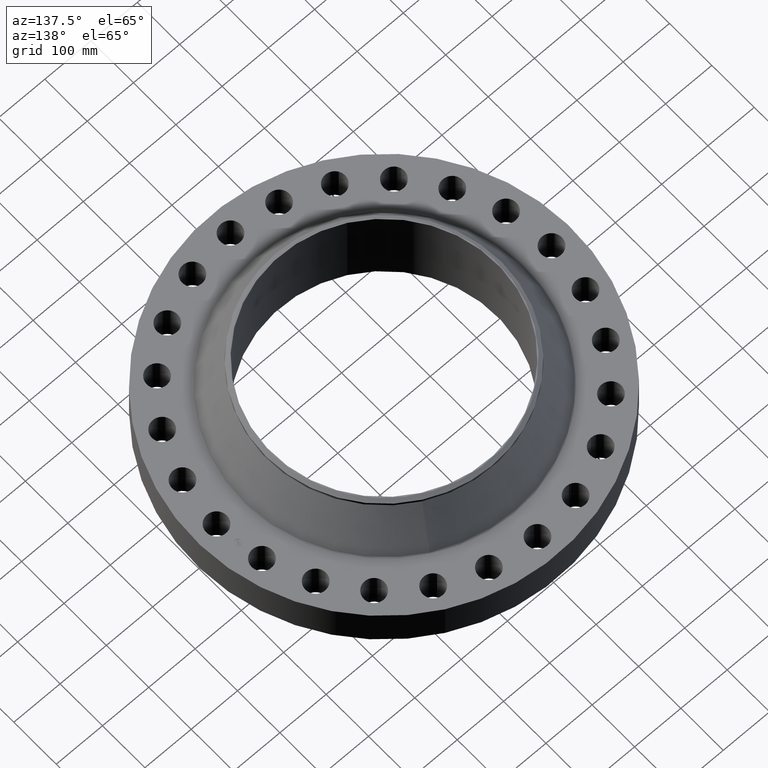
[diagram: clean part render]
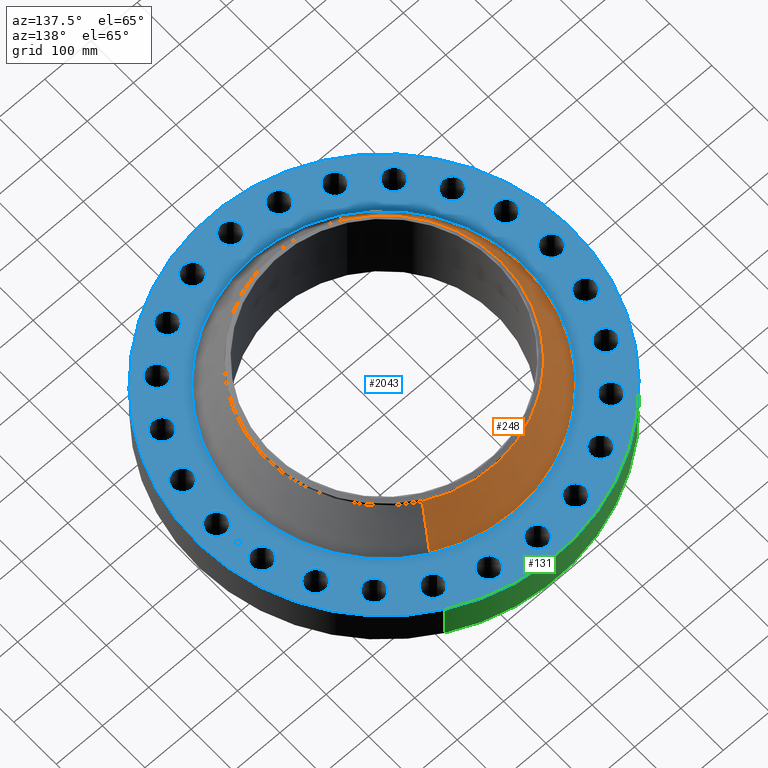
[diagram: same view with three faces highlighted in distinct colors, each labeled with its STEP entity id]
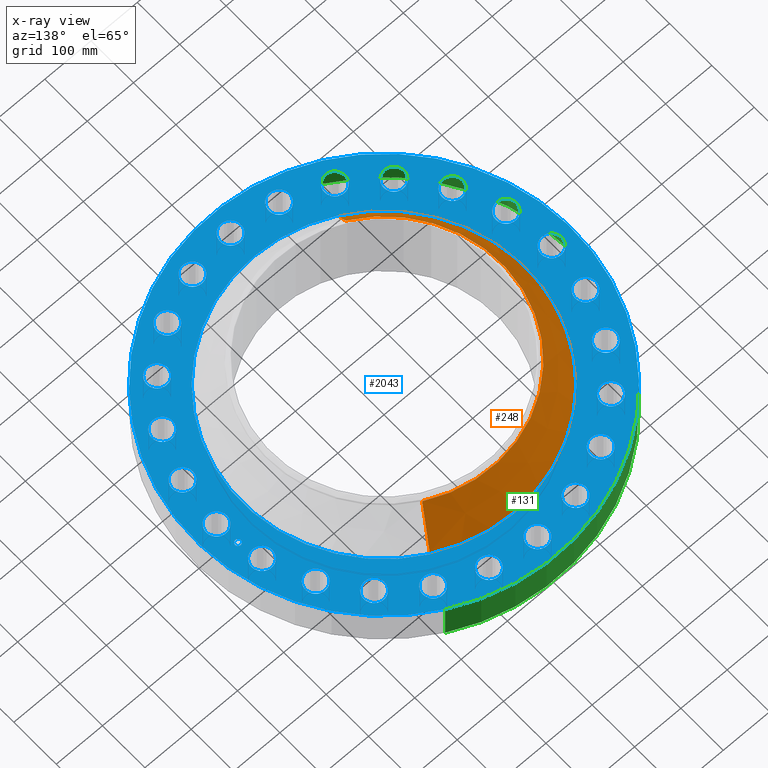
[diagram: x-ray of the same camera — body ghosted, the three highlighted faces saturated]
A machine part, auxiliary view with three faces highlighted in distinct colors.
The next image is the same camera in x-ray (body ghosted, the three faces saturated) — at least one of them is partly hidden behind the body in this view.
Their STEP definitions:

[orange] entity #248 — the highlighted conical surface has half-angle 29.49 deg.
#196=AXIS2_PLACEMENT_3D('Circle Axis2P3D',#194,#195,$) ;
#209=AXIS2_PLACEMENT_3D('Cone Axis2P3D',#206,#207,#208) ;
#239=AXIS2_PLACEMENT_3D('Circle Axis2P3D',#237,#238,$) ;
#167=CARTESIAN_POINT('Vertex',(5.73658691231,10.5007519075,3.56092769751)) ;
#174=CARTESIAN_POINT('Vertex',(-5.73658691231,-10.5007519075,3.56092769751)) ;
#194=CARTESIAN_POINT('Axis2P3D Location',(0.,0.,3.56092769751)) ;
#206=CARTESIAN_POINT('Axis2P3D Location',(0.,0.,7.03645135497)) ;
#211=CARTESIAN_POINT('Line Origine',(5.26542114919,9.63828876323,5.29868952624)) ;
#215=CARTESIAN_POINT('Vertex',(4.79425538606,8.77582561894,7.03645135497)) ;
#222=CARTESIAN_POINT('Vertex',(-4.79425538606,-8.77582561894,7.03645135497)) ;
#225=CARTESIAN_POINT('Line Origine',(-5.26542114919,-9.63828876323,5.29868952624)) ;
#237=CARTESIAN_POINT('Axis2P3D Location',(0.,0.,7.03645135497)) ;
#195=DIRECTION('Axis2P3D Direction',(0.,0.,-0.0393700787402)) ;
#207=DIRECTION('Axis2P3D Direction',(0.,0.,-0.0393700787402)) ;
#208=DIRECTION('Axis2P3D XDirection',(-0.0188750212049,-0.0345504945626,0.)) ;
#212=DIRECTION('Vector Direction',(0.00929159135356,0.0170081438879,-0.034269410144)) ;
#226=DIRECTION('Vector Direction',(-0.00929159135356,-0.0170081438879,-0.034269410144)) ;
#238=DIRECTION('Axis2P3D Direction',(0.,0.,-0.0393700787402)) ;
#213=VECTOR('Line Direction',#212,0.0393700787402) ;
#227=VECTOR('Line Direction',#226,0.0393700787402) ;
#243=ORIENTED_EDGE('',*,*,#198,.F.) ;
#244=ORIENTED_EDGE('',*,*,#229,.T.) ;
#245=ORIENTED_EDGE('',*,*,#241,.T.) ;
#246=ORIENTED_EDGE('',*,*,#217,.F.) ;
#248=ADVANCED_FACE('PartBody',(#247),#210,.T.) ;
#197=CIRCLE('generated circle',#196,11.965543031) ;
#240=CIRCLE('generated circle',#239,10.) ;
#210=CONICAL_SURFACE('Cone',#209,10.,0.514694771037) ;
#198=EDGE_CURVE('',#175,#168,#197,.T.) ;
#217=EDGE_CURVE('',#168,#216,#214,.F.) ;
#229=EDGE_CURVE('',#175,#223,#228,.F.) ;
#241=EDGE_CURVE('',#223,#216,#240,.T.) ;
#242=EDGE_LOOP('',(#243,#244,#245,#246)) ;
#247=FACE_OUTER_BOUND('',#242,.T.) ;
#214=LINE('Line',#211,#213) ;
#228=LINE('Line',#225,#227) ;
#168=VERTEX_POINT('',#167) ;
#175=VERTEX_POINT('',#174) ;
#216=VERTEX_POINT('',#215) ;
#223=VERTEX_POINT('',#222) ;

[blue] entity #2043 — the highlighted planar face has unit normal (0, 0, -1).
#65=AXIS2_PLACEMENT_3D('Circle Axis2P3D',#63,#64,$) ;
#82=AXIS2_PLACEMENT_3D('Circle Axis2P3D',#80,#81,$) ;
#115=AXIS2_PLACEMENT_3D('Circle Axis2P3D',#113,#114,$) ;
#139=AXIS2_PLACEMENT_3D('Circle Axis2P3D',#137,#138,$) ;
#156=AXIS2_PLACEMENT_3D('Circle Axis2P3D',#154,#155,$) ;
#191=AXIS2_PLACEMENT_3D('Circle Axis2P3D',#189,#190,$) ;
#948=AXIS2_PLACEMENT_3D('Circle Axis2P3D',#946,#947,$) ;
#960=AXIS2_PLACEMENT_3D('Circle Axis2P3D',#958,#959,$) ;
#991=AXIS2_PLACEMENT_3D('Circle Axis2P3D',#989,#990,$) ;
#1003=AXIS2_PLACEMENT_3D('Circle Axis2P3D',#1001,#1002,$) ;
#1034=AXIS2_PLACEMENT_3D('Circle Axis2P3D',#1032,#1033,$) ;
#1046=AXIS2_PLACEMENT_3D('Circle Axis2P3D',#1044,#1045,$) ;
#1077=AXIS2_PLACEMENT_3D('Circle Axis2P3D',#1075,#1076,$) ;
#1089=AXIS2_PLACEMENT_3D('Circle Axis2P3D',#1087,#1088,$) ;
#1120=AXIS2_PLACEMENT_3D('Circle Axis2P3D',#1118,#1119,$) ;
#1132=AXIS2_PLACEMENT_3D('Circle Axis2P3D',#1130,#1131,$) ;
#1163=AXIS2_PLACEMENT_3D('Circle Axis2P3D',#1161,#1162,$) ;
#1175=AXIS2_PLACEMENT_3D('Circle Axis2P3D',#1173,#1174,$) ;
#1206=AXIS2_PLACEMENT_3D('Circle Axis2P3D',#1204,#1205,$) ;
#1218=AXIS2_PLACEMENT_3D('Circle Axis2P3D',#1216,#1217,$) ;
#1249=AXIS2_PLACEMENT_3D('Circle Axis2P3D',#1247,#1248,$) ;
#1261=AXIS2_PLACEMENT_3D('Circle Axis2P3D',#1259,#1260,$) ;
#1292=AXIS2_PLACEMENT_3D('Circle Axis2P3D',#1290,#1291,$) ;
#1304=AXIS2_PLACEMENT_3D('Circle Axis2P3D',#1302,#1303,$) ;
#1335=AXIS2_PLACEMENT_3D('Circle Axis2P3D',#1333,#1334,$) ;
#1347=AXIS2_PLACEMENT_3D('Circle Axis2P3D',#1345,#1346,$) ;
#1378=AXIS2_PLACEMENT_3D('Circle Axis2P3D',#1376,#1377,$) ;
#1390=AXIS2_PLACEMENT_3D('Circle Axis2P3D',#1388,#1389,$) ;
#1421=AXIS2_PLACEMENT_3D('Circle Axis2P3D',#1419,#1420,$) ;
#1433=AXIS2_PLACEMENT_3D('Circle Axis2P3D',#1431,#1432,$) ;
#1464=AXIS2_PLACEMENT_3D('Circle Axis2P3D',#1462,#1463,$) ;
#1476=AXIS2_PLACEMENT_3D('Circle Axis2P3D',#1474,#1475,$) ;
#1507=AXIS2_PLACEMENT_3D('Circle Axis2P3D',#1505,#1506,$) ;
#1519=AXIS2_PLACEMENT_3D('Circle Axis2P3D',#1517,#1518,$) ;
#1550=AXIS2_PLACEMENT_3D('Circle Axis2P3D',#1548,#1549,$) ;
#1562=AXIS2_PLACEMENT_3D('Circle Axis2P3D',#1560,#1561,$) ;
#1593=AXIS2_PLACEMENT_3D('Circle Axis2P3D',#1591,#1592,$) ;
#1605=AXIS2_PLACEMENT_3D('Circle Axis2P3D',#1603,#1604,$) ;
#1636=AXIS2_PLACEMENT_3D('Circle Axis2P3D',#1634,#1635,$) ;
#1648=AXIS2_PLACEMENT_3D('Circle Axis2P3D',#1646,#1647,$) ;
#1679=AXIS2_PLACEMENT_3D('Circle Axis2P3D',#1677,#1678,$) ;
#1691=AXIS2_PLACEMENT_3D('Circle Axis2P3D',#1689,#1690,$) ;
#1722=AXIS2_PLACEMENT_3D('Circle Axis2P3D',#1720,#1721,$) ;
#1734=AXIS2_PLACEMENT_3D('Circle Axis2P3D',#1732,#1733,$) ;
#1765=AXIS2_PLACEMENT_3D('Circle Axis2P3D',#1763,#1764,$) ;
#1777=AXIS2_PLACEMENT_3D('Circle Axis2P3D',#1775,#1776,$) ;
#1808=AXIS2_PLACEMENT_3D('Circle Axis2P3D',#1806,#1807,$) ;
#1820=AXIS2_PLACEMENT_3D('Circle Axis2P3D',#1818,#1819,$) ;
#1851=AXIS2_PLACEMENT_3D('Circle Axis2P3D',#1849,#1850,$) ;
#1863=AXIS2_PLACEMENT_3D('Circle Axis2P3D',#1861,#1862,$) ;
#1894=AXIS2_PLACEMENT_3D('Circle Axis2P3D',#1892,#1893,$) ;
#1906=AXIS2_PLACEMENT_3D('Circle Axis2P3D',#1904,#1905,$) ;
#1919=AXIS2_PLACEMENT_3D('Plane Axis2P3D',#1916,#1917,#1918) ;
#2027=AXIS2_PLACEMENT_3D('Circle Axis2P3D',#2025,#2026,$) ;
#2036=AXIS2_PLACEMENT_3D('Circle Axis2P3D',#2034,#2035,$) ;
#46=CARTESIAN_POINT('Vertex',(13.4821152584,0.41949734628,3.50000000001)) ;
#60=CARTESIAN_POINT('Vertex',(15.0178847417,-0.41949734628,3.50000000001)) ;
#63=CARTESIAN_POINT('Axis2P3D Location',(14.2500000001,0.,3.50000000001)) ;
#80=CARTESIAN_POINT('Axis2P3D Location',(14.2500000001,0.,3.50000000001)) ;
#110=CARTESIAN_POINT('Vertex',(-7.6708086177,-14.0413209903,3.50000000001)) ;
#113=CARTESIAN_POINT('Axis2P3D Location',(0.,0.,3.50000000001)) ;
#117=CARTESIAN_POINT('Vertex',(7.6708086177,14.0413209903,3.50000000001)) ;
#137=CARTESIAN_POINT('Axis2P3D Location',(0.,0.,3.50000000001)) ;
#154=CARTESIAN_POINT('Axis2P3D Location',(0.,0.,3.50000000001)) ;
#158=CARTESIAN_POINT('Vertex',(5.78666442582,10.5924181811,3.50000000001)) ;
#160=CARTESIAN_POINT('Vertex',(-5.78666442582,-10.5924181811,3.50000000001)) ;
#189=CARTESIAN_POINT('Axis2P3D Location',(0.,0.,3.50000000001)) ;
#936=CARTESIAN_POINT('Vertex',(-13.1312972237,3.08422487631,3.50000000001)) ;
#943=CARTESIAN_POINT('Vertex',(-14.3975888257,4.29211790914,3.50000000001)) ;
#946=CARTESIAN_POINT('Axis2P3D Location',(-13.7644430247,3.68817139273,3.50000000001)) ;
#958=CARTESIAN_POINT('Axis2P3D Location',(-13.7644430247,3.68817139273,3.50000000001)) ;
#979=CARTESIAN_POINT('Vertex',(11.8856029837,-6.3777622705,3.50000000001)) ;
#986=CARTESIAN_POINT('Vertex',(12.7961210243,-7.87223772956,3.50000000001)) ;
#989=CARTESIAN_POINT('Axis2P3D Location',(12.340862004,-7.12500000003,3.50000000001)) ;
#1001=CARTESIAN_POINT('Axis2P3D Location',(12.340862004,-7.12500000003,3.50000000001)) ;
#1022=CARTESIAN_POINT('Vertex',(-11.8856029837,6.3777622705,3.50000000001)) ;
#1029=CARTESIAN_POINT('Vertex',(-12.7961210243,7.87223772956,3.50000000001)) ;
#1032=CARTESIAN_POINT('Axis2P3D Location',(-12.340862004,7.12500000003,3.50000000001)) ;
#1044=CARTESIAN_POINT('Axis2P3D Location',(-12.340862004,7.12500000003,3.50000000001)) ;
#1065=CARTESIAN_POINT('Vertex',(9.8299245422,-9.23666570571,3.50000000001)) ;
#1072=CARTESIAN_POINT('Vertex',(10.3226187217,-10.9158775582,3.50000000001)) ;
#1075=CARTESIAN_POINT('Axis2P3D Location',(10.0762716319,-10.0762716319,3.50000000001)) ;
#1087=CARTESIAN_POINT('Axis2P3D Location',(10.0762716319,-10.0762716319,3.50000000001)) ;
#1108=CARTESIAN_POINT('Vertex',(-9.8299245422,9.23666570571,3.50000000001)) ;
#1115=CARTESIAN_POINT('Vertex',(-10.3226187217,10.9158775582,3.50000000001)) ;
#1118=CARTESIAN_POINT('Axis2P3D Location',(-10.0762716319,10.0762716319,3.50000000001)) ;
#1130=CARTESIAN_POINT('Axis2P3D Location',(-10.0762716319,10.0762716319,3.50000000001)) ;
#1151=CARTESIAN_POINT('Vertex',(7.1043529879,-11.4661056374,3.50000000001)) ;
#1158=CARTESIAN_POINT('Vertex',(7.14564701216,-13.2156183706,3.50000000001)) ;
#1161=CARTESIAN_POINT('Axis2P3D Location',(7.12500000003,-12.340862004,3.50000000001)) ;
#1173=CARTESIAN_POINT('Axis2P3D Location',(7.12500000003,-12.340862004,3.50000000001)) ;
#1194=CARTESIAN_POINT('Vertex',(-7.1043529879,11.4661056374,3.50000000001)) ;
#1201=CARTESIAN_POINT('Vertex',(-7.14564701216,13.2156183706,3.50000000001)) ;
#1204=CARTESIAN_POINT('Axis2P3D Location',(-7.12500000003,12.340862004,3.50000000001)) ;
#1216=CARTESIAN_POINT('Axis2P3D Location',(-7.12500000003,12.340862004,3.50000000001)) ;
#1237=CARTESIAN_POINT('Vertex',(3.89463151797,-12.9141494185,3.50000000001)) ;
#1244=CARTESIAN_POINT('Vertex',(3.48171126748,-14.6147366308,3.50000000001)) ;
#1247=CARTESIAN_POINT('Axis2P3D Location',(3.68817139273,-13.7644430247,3.50000000001)) ;
#1259=CARTESIAN_POINT('Axis2P3D Location',(3.68817139273,-13.7644430247,3.50000000001)) ;
#1280=CARTESIAN_POINT('Vertex',(-3.89463151797,12.9141494185,3.50000000001)) ;
#1287=CARTESIAN_POINT('Vertex',(-3.48171126748,14.6147366308,3.50000000001)) ;
#1290=CARTESIAN_POINT('Axis2P3D Location',(-3.68817139273,13.7644430247,3.50000000001)) ;
#1302=CARTESIAN_POINT('Axis2P3D Location',(-3.68817139273,13.7644430247,3.50000000001)) ;
#1323=CARTESIAN_POINT('Vertex',(0.41949734628,-13.4821152584,3.50000000001)) ;
#1330=CARTESIAN_POINT('Vertex',(-0.41949734628,-15.0178847417,3.50000000001)) ;
#1333=CARTESIAN_POINT('Axis2P3D Location',(-1.36536903201E-015,-14.2500000001,3.50000000001)) ;
#1345=CARTESIAN_POINT('Axis2P3D Location',(-1.36536903201E-015,-14.2500000001,3.50000000001)) ;
#1366=CARTESIAN_POINT('Vertex',(-0.41949734628,13.4821152584,3.50000000001)) ;
#1373=CARTESIAN_POINT('Vertex',(0.41949734628,15.0178847417,3.50000000001)) ;
#1376=CARTESIAN_POINT('Axis2P3D Location',(-2.61768253319E-015,14.2500000001,3.50000000001)) ;
#1388=CARTESIAN_POINT('Axis2P3D Location',(-2.61768253319E-015,14.2500000001,3.50000000001)) ;
#1409=CARTESIAN_POINT('Vertex',(-3.08422487631,-13.1312972237,3.50000000001)) ;
#1416=CARTESIAN_POINT('Vertex',(-4.29211790914,-14.3975888257,3.50000000001)) ;
#1419=CARTESIAN_POINT('Axis2P3D Location',(-3.68817139273,-13.7644430247,3.50000000001)) ;
#1431=CARTESIAN_POINT('Axis2P3D Location',(-3.68817139273,-13.7644430247,3.50000000001)) ;
#1452=CARTESIAN_POINT('Vertex',(3.08422487631,13.1312972237,3.50000000001)) ;
#1459=CARTESIAN_POINT('Vertex',(4.29211790914,14.3975888257,3.50000000001)) ;
#1462=CARTESIAN_POINT('Axis2P3D Location',(3.68817139273,13.7644430247,3.50000000001)) ;
#1474=CARTESIAN_POINT('Axis2P3D Location',(3.68817139273,13.7644430247,3.50000000001)) ;
#1495=CARTESIAN_POINT('Vertex',(-6.3777622705,-11.8856029837,3.50000000001)) ;
#1502=CARTESIAN_POINT('Vertex',(-7.87223772956,-12.7961210243,3.50000000001)) ;
#1505=CARTESIAN_POINT('Axis2P3D Location',(-7.12500000003,-12.340862004,3.50000000001)) ;
#1517=CARTESIAN_POINT('Axis2P3D Location',(-7.12500000003,-12.340862004,3.50000000001)) ;
#1538=CARTESIAN_POINT('Vertex',(6.3777622705,11.8856029837,3.50000000001)) ;
#1545=CARTESIAN_POINT('Vertex',(7.87223772956,12.7961210243,3.50000000001)) ;
#1548=CARTESIAN_POINT('Axis2P3D Location',(7.12500000003,12.340862004,3.50000000001)) ;
#1560=CARTESIAN_POINT('Axis2P3D Location',(7.12500000003,12.340862004,3.50000000001)) ;
#1581=CARTESIAN_POINT('Vertex',(-9.23666570571,-9.8299245422,3.50000000001)) ;
#1588=CARTESIAN_POINT('Vertex',(-10.9158775582,-10.3226187217,3.50000000001)) ;
#1591=CARTESIAN_POINT('Axis2P3D Location',(-10.0762716319,-10.0762716319,3.50000000001)) ;
#1603=CARTESIAN_POINT('Axis2P3D Location',(-10.0762716319,-10.0762716319,3.50000000001)) ;
#1624=CARTESIAN_POINT('Vertex',(9.23666570571,9.8299245422,3.50000000001)) ;
#1631=CARTESIAN_POINT('Vertex',(10.9158775582,10.3226187217,3.50000000001)) ;
#1634=CARTESIAN_POINT('Axis2P3D Location',(10.0762716319,10.0762716319,3.50000000001)) ;
#1646=CARTESIAN_POINT('Axis2P3D Location',(10.0762716319,10.0762716319,3.50000000001)) ;
#1667=CARTESIAN_POINT('Vertex',(-11.4661056374,-7.1043529879,3.50000000001)) ;
#1674=CARTESIAN_POINT('Vertex',(-13.2156183706,-7.14564701216,3.50000000001)) ;
#1677=CARTESIAN_POINT('Axis2P3D Location',(-12.340862004,-7.12500000003,3.50000000001)) ;
#1689=CARTESIAN_POINT('Axis2P3D Location',(-12.340862004,-7.12500000003,3.50000000001)) ;
#1710=CARTESIAN_POINT('Vertex',(11.4661056374,7.1043529879,3.50000000001)) ;
#1717=CARTESIAN_POINT('Vertex',(13.2156183706,7.14564701216,3.50000000001)) ;
#1720=CARTESIAN_POINT('Axis2P3D Location',(12.340862004,7.12500000003,3.50000000001)) ;
#1732=CARTESIAN_POINT('Axis2P3D Location',(12.340862004,7.12500000003,3.50000000001)) ;
#1753=CARTESIAN_POINT('Vertex',(-12.9141494185,-3.89463151797,3.50000000001)) ;
#1760=CARTESIAN_POINT('Vertex',(-14.6147366308,-3.48171126748,3.50000000001)) ;
#1763=CARTESIAN_POINT('Axis2P3D Location',(-13.7644430247,-3.68817139273,3.50000000001)) ;
#1775=CARTESIAN_POINT('Axis2P3D Location',(-13.7644430247,-3.68817139273,3.50000000001)) ;
#1796=CARTESIAN_POINT('Vertex',(12.9141494185,3.89463151797,3.50000000001)) ;
#1803=CARTESIAN_POINT('Vertex',(14.6147366308,3.48171126748,3.50000000001)) ;
#1806=CARTESIAN_POINT('Axis2P3D Location',(13.7644430247,3.68817139273,3.50000000001)) ;
#1818=CARTESIAN_POINT('Axis2P3D Location',(13.7644430247,3.68817139273,3.50000000001)) ;
#1839=CARTESIAN_POINT('Vertex',(-13.4821152584,-0.41949734628,3.50000000001)) ;
#1846=CARTESIAN_POINT('Vertex',(-15.0178847417,0.41949734628,3.50000000001)) ;
#1849=CARTESIAN_POINT('Axis2P3D Location',(-14.2500000001,-1.74512168879E-015,3.50000000001)) ;
#1861=CARTESIAN_POINT('Axis2P3D Location',(-14.2500000001,-1.74512168879E-015,3.50000000001)) ;
#1882=CARTESIAN_POINT('Vertex',(13.1312972237,-3.08422487631,3.50000000001)) ;
#1889=CARTESIAN_POINT('Vertex',(14.3975888257,-4.29211790914,3.50000000001)) ;
#1892=CARTESIAN_POINT('Axis2P3D Location',(13.7644430247,-3.68817139273,3.50000000001)) ;
#1904=CARTESIAN_POINT('Axis2P3D Location',(13.7644430247,-3.68817139273,3.50000000001)) ;
#1916=CARTESIAN_POINT('Axis2P3D Location',(0.,16.0000000001,3.50000000001)) ;
#2025=CARTESIAN_POINT('Axis2P3D Location',(14.1280892746,1.85999823914,3.50000000001)) ;
#2029=CARTESIAN_POINT('Vertex',(14.0957840421,2.10538084233,3.50000000001)) ;
#2031=CARTESIAN_POINT('Vertex',(14.1603945072,1.61461563595,3.50000000001)) ;
#2034=CARTESIAN_POINT('Axis2P3D Location',(14.1280892746,1.85999823914,3.50000000001)) ;
#64=DIRECTION('Axis2P3D Direction',(0.,-0.,-0.0393700787402)) ;
#81=DIRECTION('Axis2P3D Direction',(0.,-0.,-0.0393700787402)) ;
#114=DIRECTION('Axis2P3D Direction',(0.,0.,-0.0393700787402)) ;
#138=DIRECTION('Axis2P3D Direction',(0.,0.,-0.0393700787402)) ;
#155=DIRECTION('Axis2P3D Direction',(0.,0.,-0.0393700787402)) ;
#190=DIRECTION('Axis2P3D Direction',(0.,0.,-0.0393700787402)) ;
#947=DIRECTION('Axis2P3D Direction',(0.,0.,-0.0393700787402)) ;
#959=DIRECTION('Axis2P3D Direction',(0.,0.,-0.0393700787402)) ;
#990=DIRECTION('Axis2P3D Direction',(0.,-0.,-0.0393700787402)) ;
#1002=DIRECTION('Axis2P3D Direction',(0.,-0.,-0.0393700787402)) ;
#1033=DIRECTION('Axis2P3D Direction',(0.,0.,-0.0393700787402)) ;
#1045=DIRECTION('Axis2P3D Direction',(0.,0.,-0.0393700787402)) ;
#1076=DIRECTION('Axis2P3D Direction',(0.,-0.,-0.0393700787402)) ;
#1088=DIRECTION('Axis2P3D Direction',(0.,-0.,-0.0393700787402)) ;
#1119=DIRECTION('Axis2P3D Direction',(0.,0.,-0.0393700787402)) ;
#1131=DIRECTION('Axis2P3D Direction',(0.,0.,-0.0393700787402)) ;
#1162=DIRECTION('Axis2P3D Direction',(0.,-0.,-0.0393700787402)) ;
#1174=DIRECTION('Axis2P3D Direction',(0.,-0.,-0.0393700787402)) ;
#1205=DIRECTION('Axis2P3D Direction',(0.,0.,-0.0393700787402)) ;
#1217=DIRECTION('Axis2P3D Direction',(0.,0.,-0.0393700787402)) ;
#1248=DIRECTION('Axis2P3D Direction',(0.,-0.,-0.0393700787402)) ;
#1260=DIRECTION('Axis2P3D Direction',(0.,-0.,-0.0393700787402)) ;
#1291=DIRECTION('Axis2P3D Direction',(0.,0.,-0.0393700787402)) ;
#1303=DIRECTION('Axis2P3D Direction',(0.,0.,-0.0393700787402)) ;
#1334=DIRECTION('Axis2P3D Direction',(0.,-0.,-0.0393700787402)) ;
#1346=DIRECTION('Axis2P3D Direction',(0.,-0.,-0.0393700787402)) ;
#1377=DIRECTION('Axis2P3D Direction',(0.,0.,-0.0393700787402)) ;
#1389=DIRECTION('Axis2P3D Direction',(0.,0.,-0.0393700787402)) ;
#1420=DIRECTION('Axis2P3D Direction',(-0.,0.,-0.0393700787402)) ;
#1432=DIRECTION('Axis2P3D Direction',(-0.,0.,-0.0393700787402)) ;
#1463=DIRECTION('Axis2P3D Direction',(0.,0.,-0.0393700787402)) ;
#1475=DIRECTION('Axis2P3D Direction',(0.,0.,-0.0393700787402)) ;
#1506=DIRECTION('Axis2P3D Direction',(-0.,0.,-0.0393700787402)) ;
#1518=DIRECTION('Axis2P3D Direction',(-0.,0.,-0.0393700787402)) ;
#1549=DIRECTION('Axis2P3D Direction',(0.,0.,-0.0393700787402)) ;
#1561=DIRECTION('Axis2P3D Direction',(0.,0.,-0.0393700787402)) ;
#1592=DIRECTION('Axis2P3D Direction',(-0.,0.,-0.0393700787402)) ;
#1604=DIRECTION('Axis2P3D Direction',(-0.,0.,-0.0393700787402)) ;
#1635=DIRECTION('Axis2P3D Direction',(0.,0.,-0.0393700787402)) ;
#1647=DIRECTION('Axis2P3D Direction',(0.,0.,-0.0393700787402)) ;
#1678=DIRECTION('Axis2P3D Direction',(-0.,0.,-0.0393700787402)) ;
#1690=DIRECTION('Axis2P3D Direction',(-0.,0.,-0.0393700787402)) ;
#1721=DIRECTION('Axis2P3D Direction',(0.,0.,-0.0393700787402)) ;
#1733=DIRECTION('Axis2P3D Direction',(0.,0.,-0.0393700787402)) ;
#1764=DIRECTION('Axis2P3D Direction',(-0.,0.,-0.0393700787402)) ;
#1776=DIRECTION('Axis2P3D Direction',(-0.,0.,-0.0393700787402)) ;
#1807=DIRECTION('Axis2P3D Direction',(0.,0.,-0.0393700787402)) ;
#1819=DIRECTION('Axis2P3D Direction',(0.,0.,-0.0393700787402)) ;
#1850=DIRECTION('Axis2P3D Direction',(-0.,0.,-0.0393700787402)) ;
#1862=DIRECTION('Axis2P3D Direction',(-0.,0.,-0.0393700787402)) ;
#1893=DIRECTION('Axis2P3D Direction',(0.,-0.,-0.0393700787402)) ;
#1905=DIRECTION('Axis2P3D Direction',(0.,-0.,-0.0393700787402)) ;
#1917=DIRECTION('Axis2P3D Direction',(0.,0.,-0.0393700787402)) ;
#1918=DIRECTION('Axis2P3D XDirection',(0.0393700787402,0.,0.)) ;
#2026=DIRECTION('Axis2P3D Direction',(0.,0.,-0.0393700787402)) ;
#2035=DIRECTION('Axis2P3D Direction',(0.,0.,-0.0393700787402)) ;
#1922=ORIENTED_EDGE('',*,*,#141,.F.) ;
#1923=ORIENTED_EDGE('',*,*,#119,.F.) ;
#1926=ORIENTED_EDGE('',*,*,#67,.T.) ;
#1927=ORIENTED_EDGE('',*,*,#84,.T.) ;
#1930=ORIENTED_EDGE('',*,*,#193,.T.) ;
#1931=ORIENTED_EDGE('',*,*,#162,.T.) ;
#1934=ORIENTED_EDGE('',*,*,#1908,.T.) ;
#1935=ORIENTED_EDGE('',*,*,#1896,.T.) ;
#1938=ORIENTED_EDGE('',*,*,#1005,.T.) ;
#1939=ORIENTED_EDGE('',*,*,#993,.T.) ;
#1942=ORIENTED_EDGE('',*,*,#1091,.T.) ;
#1943=ORIENTED_EDGE('',*,*,#1079,.T.) ;
#1946=ORIENTED_EDGE('',*,*,#1177,.T.) ;
#1947=ORIENTED_EDGE('',*,*,#1165,.T.) ;
#1950=ORIENTED_EDGE('',*,*,#1263,.T.) ;
#1951=ORIENTED_EDGE('',*,*,#1251,.T.) ;
#1954=ORIENTED_EDGE('',*,*,#1349,.T.) ;
#1955=ORIENTED_EDGE('',*,*,#1337,.T.) ;
#1958=ORIENTED_EDGE('',*,*,#1435,.T.) ;
#1959=ORIENTED_EDGE('',*,*,#1423,.T.) ;
#1962=ORIENTED_EDGE('',*,*,#1521,.T.) ;
#1963=ORIENTED_EDGE('',*,*,#1509,.T.) ;
#1966=ORIENTED_EDGE('',*,*,#1607,.T.) ;
#1967=ORIENTED_EDGE('',*,*,#1595,.T.) ;
#1970=ORIENTED_EDGE('',*,*,#1693,.T.) ;
#1971=ORIENTED_EDGE('',*,*,#1681,.T.) ;
#1974=ORIENTED_EDGE('',*,*,#1779,.T.) ;
#1975=ORIENTED_EDGE('',*,*,#1767,.T.) ;
#1978=ORIENTED_EDGE('',*,*,#1865,.T.) ;
#1979=ORIENTED_EDGE('',*,*,#1853,.T.) ;
#1982=ORIENTED_EDGE('',*,*,#962,.T.) ;
#1983=ORIENTED_EDGE('',*,*,#950,.T.) ;
#1986=ORIENTED_EDGE('',*,*,#1048,.T.) ;
#1987=ORIENTED_EDGE('',*,*,#1036,.T.) ;
#1990=ORIENTED_EDGE('',*,*,#1134,.T.) ;
#1991=ORIENTED_EDGE('',*,*,#1122,.T.) ;
#1994=ORIENTED_EDGE('',*,*,#1220,.T.) ;
#1995=ORIENTED_EDGE('',*,*,#1208,.T.) ;
#1998=ORIENTED_EDGE('',*,*,#1306,.T.) ;
#1999=ORIENTED_EDGE('',*,*,#1294,.T.) ;
#2002=ORIENTED_EDGE('',*,*,#1392,.T.) ;
#2003=ORIENTED_EDGE('',*,*,#1380,.T.) ;
#2006=ORIENTED_EDGE('',*,*,#1478,.T.) ;
#2007=ORIENTED_EDGE('',*,*,#1466,.T.) ;
#2010=ORIENTED_EDGE('',*,*,#1564,.T.) ;
#2011=ORIENTED_EDGE('',*,*,#1552,.T.) ;
#2014=ORIENTED_EDGE('',*,*,#1650,.T.) ;
#2015=ORIENTED_EDGE('',*,*,#1638,.T.) ;
#2018=ORIENTED_EDGE('',*,*,#1736,.T.) ;
#2019=ORIENTED_EDGE('',*,*,#1724,.T.) ;
#2022=ORIENTED_EDGE('',*,*,#1822,.T.) ;
#2023=ORIENTED_EDGE('',*,*,#1810,.T.) ;
#2040=ORIENTED_EDGE('',*,*,#2033,.T.) ;
#2041=ORIENTED_EDGE('',*,*,#2038,.T.) ;
#1928=FACE_BOUND('',#1925,.T.) ;
#1932=FACE_BOUND('',#1929,.T.) ;
#1936=FACE_BOUND('',#1933,.T.) ;
#1940=FACE_BOUND('',#1937,.T.) ;
#1944=FACE_BOUND('',#1941,.T.) ;
#1948=FACE_BOUND('',#1945,.T.) ;
#1952=FACE_BOUND('',#1949,.T.) ;
#1956=FACE_BOUND('',#1953,.T.) ;
#1960=FACE_BOUND('',#1957,.T.) ;
#1964=FACE_BOUND('',#1961,.T.) ;
#1968=FACE_BOUND('',#1965,.T.) ;
#1972=FACE_BOUND('',#1969,.T.) ;
#1976=FACE_BOUND('',#1973,.T.) ;
#1980=FACE_BOUND('',#1977,.T.) ;
#1984=FACE_BOUND('',#1981,.T.) ;
#1988=FACE_BOUND('',#1985,.T.) ;
#1992=FACE_BOUND('',#1989,.T.) ;
#1996=FACE_BOUND('',#1993,.T.) ;
#2000=FACE_BOUND('',#1997,.T.) ;
#2004=FACE_BOUND('',#2001,.T.) ;
#2008=FACE_BOUND('',#2005,.T.) ;
#2012=FACE_BOUND('',#2009,.T.) ;
#2016=FACE_BOUND('',#2013,.T.) ;
#2020=FACE_BOUND('',#2017,.T.) ;
#2024=FACE_BOUND('',#2021,.T.) ;
#2042=FACE_BOUND('',#2039,.T.) ;
#2043=ADVANCED_FACE('PartBody',(#1924,#1928,#1932,#1936,#1940,#1944,#1948,#1952,#1956,#1960,#1964,#1968,#1972,#1976,#1980,#1984,#1988,#1992,#1996,#2000,#2004,#2008,#2012,#2016,#2020,#2024,#2042),#1920,.F.) ;
#66=CIRCLE('generated circle',#65,0.875000000004) ;
#83=CIRCLE('generated circle',#82,0.875000000004) ;
#116=CIRCLE('generated circle',#115,16.0000000001) ;
#140=CIRCLE('generated circle',#139,16.0000000001) ;
#157=CIRCLE('generated circle',#156,12.0699961931) ;
#192=CIRCLE('generated circle',#191,12.0699961931) ;
#949=CIRCLE('generated circle',#948,0.875000000004) ;
#961=CIRCLE('generated circle',#960,0.875000000004) ;
#992=CIRCLE('generated circle',#991,0.875000000003) ;
#1004=CIRCLE('generated circle',#1003,0.875000000003) ;
#1035=CIRCLE('generated circle',#1034,0.875000000003) ;
#1047=CIRCLE('generated circle',#1046,0.875000000003) ;
#1078=CIRCLE('generated circle',#1077,0.875000000004) ;
#1090=CIRCLE('generated circle',#1089,0.875000000004) ;
#1121=CIRCLE('generated circle',#1120,0.875000000004) ;
#1133=CIRCLE('generated circle',#1132,0.875000000004) ;
#1164=CIRCLE('generated circle',#1163,0.875000000003) ;
#1176=CIRCLE('generated circle',#1175,0.875000000003) ;
#1207=CIRCLE('generated circle',#1206,0.875000000003) ;
#1219=CIRCLE('generated circle',#1218,0.875000000003) ;
#1250=CIRCLE('generated circle',#1249,0.875000000004) ;
#1262=CIRCLE('generated circle',#1261,0.875000000004) ;
#1293=CIRCLE('generated circle',#1292,0.875000000004) ;
#1305=CIRCLE('generated circle',#1304,0.875000000004) ;
#1336=CIRCLE('generated circle',#1335,0.875000000004) ;
#1348=CIRCLE('generated circle',#1347,0.875000000004) ;
#1379=CIRCLE('generated circle',#1378,0.875000000004) ;
#1391=CIRCLE('generated circle',#1390,0.875000000004) ;
#1422=CIRCLE('generated circle',#1421,0.875000000004) ;
#1434=CIRCLE('generated circle',#1433,0.875000000004) ;
#1465=CIRCLE('generated circle',#1464,0.875000000004) ;
#1477=CIRCLE('generated circle',#1476,0.875000000004) ;
#1508=CIRCLE('generated circle',#1507,0.875000000003) ;
#1520=CIRCLE('generated circle',#1519,0.875000000003) ;
#1551=CIRCLE('generated circle',#1550,0.875000000003) ;
#1563=CIRCLE('generated circle',#1562,0.875000000003) ;
#1594=CIRCLE('generated circle',#1593,0.875000000003) ;
#1606=CIRCLE('generated circle',#1605,0.875000000003) ;
#1637=CIRCLE('generated circle',#1636,0.875000000004) ;
#1649=CIRCLE('generated circle',#1648,0.875000000004) ;
#1680=CIRCLE('generated circle',#1679,0.875000000003) ;
#1692=CIRCLE('generated circle',#1691,0.875000000003) ;
#1723=CIRCLE('generated circle',#1722,0.875000000003) ;
#1735=CIRCLE('generated circle',#1734,0.875000000003) ;
#1766=CIRCLE('generated circle',#1765,0.875000000004) ;
#1778=CIRCLE('generated circle',#1777,0.875000000004) ;
#1809=CIRCLE('generated circle',#1808,0.875000000004) ;
#1821=CIRCLE('generated circle',#1820,0.875000000004) ;
#1852=CIRCLE('generated circle',#1851,0.875000000004) ;
#1864=CIRCLE('generated circle',#1863,0.875000000004) ;
#1895=CIRCLE('generated circle',#1894,0.875000000004) ;
#1907=CIRCLE('generated circle',#1906,0.875000000004) ;
#2028=CIRCLE('generated circle',#2027,0.247500000001) ;
#2037=CIRCLE('generated circle',#2036,0.247500000001) ;
#67=EDGE_CURVE('',#47,#61,#66,.T.) ;
#84=EDGE_CURVE('',#61,#47,#83,.T.) ;
#119=EDGE_CURVE('',#111,#118,#116,.T.) ;
#141=EDGE_CURVE('',#118,#111,#140,.T.) ;
#162=EDGE_CURVE('',#159,#161,#157,.T.) ;
#193=EDGE_CURVE('',#161,#159,#192,.T.) ;
#950=EDGE_CURVE('',#937,#944,#949,.T.) ;
#962=EDGE_CURVE('',#944,#937,#961,.T.) ;
#993=EDGE_CURVE('',#980,#987,#992,.T.) ;
#1005=EDGE_CURVE('',#987,#980,#1004,.T.) ;
#1036=EDGE_CURVE('',#1023,#1030,#1035,.T.) ;
#1048=EDGE_CURVE('',#1030,#1023,#1047,.T.) ;
#1079=EDGE_CURVE('',#1066,#1073,#1078,.T.) ;
#1091=EDGE_CURVE('',#1073,#1066,#1090,.T.) ;
#1122=EDGE_CURVE('',#1109,#1116,#1121,.T.) ;
#1134=EDGE_CURVE('',#1116,#1109,#1133,.T.) ;
#1165=EDGE_CURVE('',#1152,#1159,#1164,.T.) ;
#1177=EDGE_CURVE('',#1159,#1152,#1176,.T.) ;
#1208=EDGE_CURVE('',#1195,#1202,#1207,.T.) ;
#1220=EDGE_CURVE('',#1202,#1195,#1219,.T.) ;
#1251=EDGE_CURVE('',#1238,#1245,#1250,.T.) ;
#1263=EDGE_CURVE('',#1245,#1238,#1262,.T.) ;
#1294=EDGE_CURVE('',#1281,#1288,#1293,.T.) ;
#1306=EDGE_CURVE('',#1288,#1281,#1305,.T.) ;
#1337=EDGE_CURVE('',#1324,#1331,#1336,.T.) ;
#1349=EDGE_CURVE('',#1331,#1324,#1348,.T.) ;
#1380=EDGE_CURVE('',#1367,#1374,#1379,.T.) ;
#1392=EDGE_CURVE('',#1374,#1367,#1391,.T.) ;
#1423=EDGE_CURVE('',#1410,#1417,#1422,.T.) ;
#1435=EDGE_CURVE('',#1417,#1410,#1434,.T.) ;
#1466=EDGE_CURVE('',#1453,#1460,#1465,.T.) ;
#1478=EDGE_CURVE('',#1460,#1453,#1477,.T.) ;
#1509=EDGE_CURVE('',#1496,#1503,#1508,.T.) ;
#1521=EDGE_CURVE('',#1503,#1496,#1520,.T.) ;
#1552=EDGE_CURVE('',#1539,#1546,#1551,.T.) ;
#1564=EDGE_CURVE('',#1546,#1539,#1563,.T.) ;
#1595=EDGE_CURVE('',#1582,#1589,#1594,.T.) ;
#1607=EDGE_CURVE('',#1589,#1582,#1606,.T.) ;
#1638=EDGE_CURVE('',#1625,#1632,#1637,.T.) ;
#1650=EDGE_CURVE('',#1632,#1625,#1649,.T.) ;
#1681=EDGE_CURVE('',#1668,#1675,#1680,.T.) ;
#1693=EDGE_CURVE('',#1675,#1668,#1692,.T.) ;
#1724=EDGE_CURVE('',#1711,#1718,#1723,.T.) ;
#1736=EDGE_CURVE('',#1718,#1711,#1735,.T.) ;
#1767=EDGE_CURVE('',#1754,#1761,#1766,.T.) ;
#1779=EDGE_CURVE('',#1761,#1754,#1778,.T.) ;
#1810=EDGE_CURVE('',#1797,#1804,#1809,.T.) ;
#1822=EDGE_CURVE('',#1804,#1797,#1821,.T.) ;
#1853=EDGE_CURVE('',#1840,#1847,#1852,.T.) ;
#1865=EDGE_CURVE('',#1847,#1840,#1864,.T.) ;
#1896=EDGE_CURVE('',#1883,#1890,#1895,.T.) ;
#1908=EDGE_CURVE('',#1890,#1883,#1907,.T.) ;
#2033=EDGE_CURVE('',#2030,#2032,#2028,.T.) ;
#2038=EDGE_CURVE('',#2032,#2030,#2037,.T.) ;
#1921=EDGE_LOOP('',(#1922,#1923)) ;
#1925=EDGE_LOOP('',(#1926,#1927)) ;
#1929=EDGE_LOOP('',(#1930,#1931)) ;
#1933=EDGE_LOOP('',(#1934,#1935)) ;
#1937=EDGE_LOOP('',(#1938,#1939)) ;
#1941=EDGE_LOOP('',(#1942,#1943)) ;
#1945=EDGE_LOOP('',(#1946,#1947)) ;
#1949=EDGE_LOOP('',(#1950,#1951)) ;
#1953=EDGE_LOOP('',(#1954,#1955)) ;
#1957=EDGE_LOOP('',(#1958,#1959)) ;
#1961=EDGE_LOOP('',(#1962,#1963)) ;
#1965=EDGE_LOOP('',(#1966,#1967)) ;
#1969=EDGE_LOOP('',(#1970,#1971)) ;
#1973=EDGE_LOOP('',(#1974,#1975)) ;
#1977=EDGE_LOOP('',(#1978,#1979)) ;
#1981=EDGE_LOOP('',(#1982,#1983)) ;
#1985=EDGE_LOOP('',(#1986,#1987)) ;
#1989=EDGE_LOOP('',(#1990,#1991)) ;
#1993=EDGE_LOOP('',(#1994,#1995)) ;
#1997=EDGE_LOOP('',(#1998,#1999)) ;
#2001=EDGE_LOOP('',(#2002,#2003)) ;
#2005=EDGE_LOOP('',(#2006,#2007)) ;
#2009=EDGE_LOOP('',(#2010,#2011)) ;
#2013=EDGE_LOOP('',(#2014,#2015)) ;
#2017=EDGE_LOOP('',(#2018,#2019)) ;
#2021=EDGE_LOOP('',(#2022,#2023)) ;
#2039=EDGE_LOOP('',(#2040,#2041)) ;
#1924=FACE_OUTER_BOUND('',#1921,.T.) ;
#1920=PLANE('',#1919) ;
#47=VERTEX_POINT('',#46) ;
#61=VERTEX_POINT('',#60) ;
#111=VERTEX_POINT('',#110) ;
#118=VERTEX_POINT('',#117) ;
#159=VERTEX_POINT('',#158) ;
#161=VERTEX_POINT('',#160) ;
#937=VERTEX_POINT('',#936) ;
#944=VERTEX_POINT('',#943) ;
#980=VERTEX_POINT('',#979) ;
#987=VERTEX_POINT('',#986) ;
#1023=VERTEX_POINT('',#1022) ;
#1030=VERTEX_POINT('',#1029) ;
#1066=VERTEX_POINT('',#1065) ;
#1073=VERTEX_POINT('',#1072) ;
#1109=VERTEX_POINT('',#1108) ;
#1116=VERTEX_POINT('',#1115) ;
#1152=VERTEX_POINT('',#1151) ;
#1159=VERTEX_POINT('',#1158) ;
#1195=VERTEX_POINT('',#1194) ;
#1202=VERTEX_POINT('',#1201) ;
#1238=VERTEX_POINT('',#1237) ;
#1245=VERTEX_POINT('',#1244) ;
#1281=VERTEX_POINT('',#1280) ;
#1288=VERTEX_POINT('',#1287) ;
#1324=VERTEX_POINT('',#1323) ;
#1331=VERTEX_POINT('',#1330) ;
#1367=VERTEX_POINT('',#1366) ;
#1374=VERTEX_POINT('',#1373) ;
#1410=VERTEX_POINT('',#1409) ;
#1417=VERTEX_POINT('',#1416) ;
#1453=VERTEX_POINT('',#1452) ;
#1460=VERTEX_POINT('',#1459) ;
#1496=VERTEX_POINT('',#1495) ;
#1503=VERTEX_POINT('',#1502) ;
#1539=VERTEX_POINT('',#1538) ;
#1546=VERTEX_POINT('',#1545) ;
#1582=VERTEX_POINT('',#1581) ;
#1589=VERTEX_POINT('',#1588) ;
#1625=VERTEX_POINT('',#1624) ;
#1632=VERTEX_POINT('',#1631) ;
#1668=VERTEX_POINT('',#1667) ;
#1675=VERTEX_POINT('',#1674) ;
#1711=VERTEX_POINT('',#1710) ;
#1718=VERTEX_POINT('',#1717) ;
#1754=VERTEX_POINT('',#1753) ;
#1761=VERTEX_POINT('',#1760) ;
#1797=VERTEX_POINT('',#1796) ;
#1804=VERTEX_POINT('',#1803) ;
#1840=VERTEX_POINT('',#1839) ;
#1847=VERTEX_POINT('',#1846) ;
#1883=VERTEX_POINT('',#1882) ;
#1890=VERTEX_POINT('',#1889) ;
#2030=VERTEX_POINT('',#2029) ;
#2032=VERTEX_POINT('',#2031) ;

[green] entity #131 — the highlighted cylindrical surface (partial cylindrical patch) has radius 406.4 mm, axis along (0, 0, -1).
#95=AXIS2_PLACEMENT_3D('Cylinder Axis2P3D',#92,#93,#94) ;
#99=AXIS2_PLACEMENT_3D('Circle Axis2P3D',#97,#98,$) ;
#115=AXIS2_PLACEMENT_3D('Circle Axis2P3D',#113,#114,$) ;
#92=CARTESIAN_POINT('Axis2P3D Location',(0.,0.,3.62500000001)) ;
#97=CARTESIAN_POINT('Axis2P3D Location',(0.,0.,1.67844740731E-015)) ;
#101=CARTESIAN_POINT('Vertex',(-7.6708086177,-14.0413209903,1.67844740731E-015)) ;
#103=CARTESIAN_POINT('Vertex',(7.6708086177,14.0413209903,1.67844740731E-015)) ;
#106=CARTESIAN_POINT('Line Origine',(-7.6708086177,-14.0413209903,1.75000000001)) ;
#110=CARTESIAN_POINT('Vertex',(-7.6708086177,-14.0413209903,3.50000000001)) ;
#113=CARTESIAN_POINT('Axis2P3D Location',(0.,0.,3.50000000001)) ;
#117=CARTESIAN_POINT('Vertex',(7.6708086177,14.0413209903,3.50000000001)) ;
#120=CARTESIAN_POINT('Line Origine',(7.6708086177,14.0413209903,1.75000000001)) ;
#93=DIRECTION('Axis2P3D Direction',(0.,0.,-0.0393700787402)) ;
#94=DIRECTION('Axis2P3D XDirection',(0.0188750212049,0.0345504945626,0.)) ;
#98=DIRECTION('Axis2P3D Direction',(0.,0.,-0.0393700787402)) ;
#107=DIRECTION('Vector Direction',(0.,0.,-0.0393700787402)) ;
#114=DIRECTION('Axis2P3D Direction',(0.,0.,-0.0393700787402)) ;
#121=DIRECTION('Vector Direction',(0.,0.,-0.0393700787402)) ;
#108=VECTOR('Line Direction',#107,0.0393700787402) ;
#122=VECTOR('Line Direction',#121,0.0393700787402) ;
#126=ORIENTED_EDGE('',*,*,#105,.F.) ;
#127=ORIENTED_EDGE('',*,*,#112,.T.) ;
#128=ORIENTED_EDGE('',*,*,#119,.T.) ;
#129=ORIENTED_EDGE('',*,*,#124,.F.) ;
#131=ADVANCED_FACE('PartBody',(#130),#96,.T.) ;
#100=CIRCLE('generated circle',#99,16.0000000001) ;
#116=CIRCLE('generated circle',#115,16.0000000001) ;
#96=CYLINDRICAL_SURFACE('generated cylinder',#95,16.0000000001) ;
#105=EDGE_CURVE('',#102,#104,#100,.T.) ;
#112=EDGE_CURVE('',#102,#111,#109,.F.) ;
#119=EDGE_CURVE('',#111,#118,#116,.T.) ;
#124=EDGE_CURVE('',#104,#118,#123,.F.) ;
#125=EDGE_LOOP('',(#126,#127,#128,#129)) ;
#130=FACE_OUTER_BOUND('',#125,.T.) ;
#109=LINE('Line',#106,#108) ;
#123=LINE('Line',#120,#122) ;
#102=VERTEX_POINT('',#101) ;
#104=VERTEX_POINT('',#103) ;
#111=VERTEX_POINT('',#110) ;
#118=VERTEX_POINT('',#117) ;